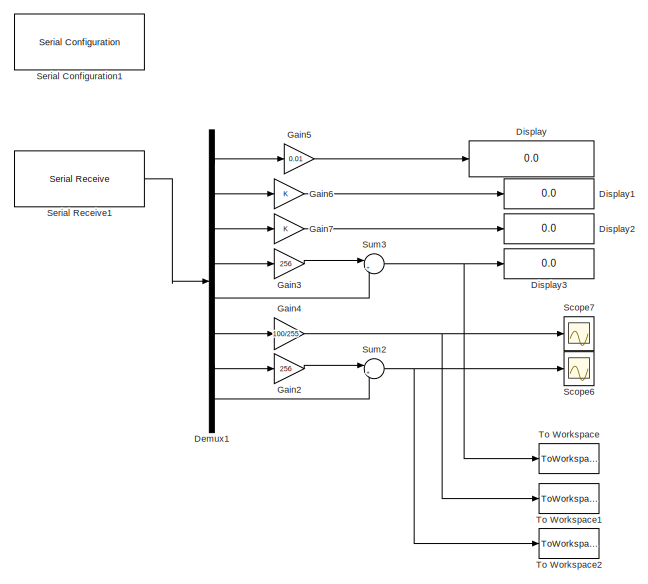
[diagram: root canvas - part 1/2, left side, full height]
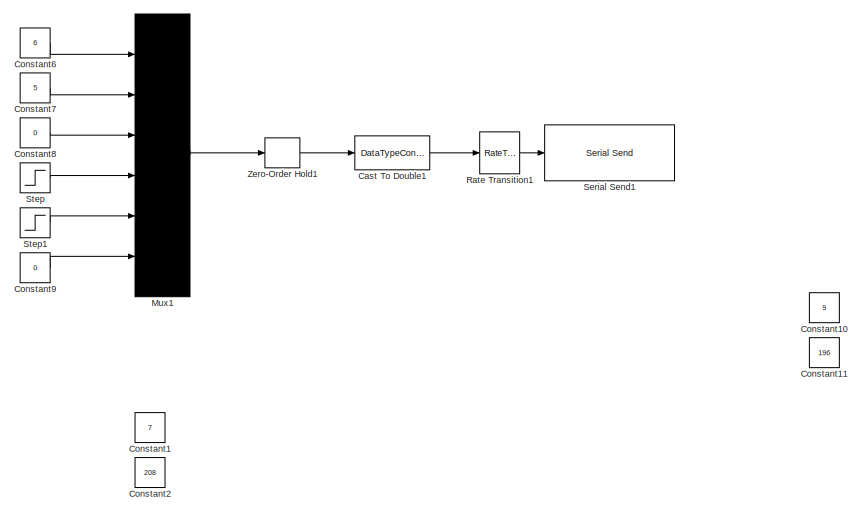
[diagram: root canvas - part 2/2, right side, full height]
MODEL slx_308909fd2b9f
KIND model
CONFIG AbsTol = auto
CONFIG EnableMultiTasking = off
CONFIG FixedStep = auto
CONFIG MaxStep = auto
CONFIG MinStep = auto
CONFIG RelTol = 1e-3
CONFIG SampleTimeConstraint = Unconstrained
CONFIG Solver = VariableStepAuto
CONFIG SolverName = VariableStepAuto
CONFIG StartTime = 0.0
CONFIG StopTime = inf
BLOCK [DataTypeConversion] Cast To Double1
  OutDataTypeStr = uint8
  RndMeth = Floor
  SaturateOnIntegerOverflow = off
BLOCK [Constant] Constant1
  Value = 7
BLOCK [Constant] Constant10
  Value = 9
BLOCK [Constant] Constant11
  Value = 196
BLOCK [Constant] Constant2
  Value = 208
BLOCK [Constant] Constant6
  Value = 6
BLOCK [Constant] Constant7
  Value = 5
BLOCK [Constant] Constant8
  Value = 0
BLOCK [Constant] Constant9
  Value = 0
BLOCK [Demux] Demux1
  DisplayOption = bar
  Outputs = 8
  Ports = [1, 8]
BLOCK [Display] Display
  Decimation = 1
  Ports = [1]
BLOCK [Display] Display1
  Decimation = 1
  Ports = [1]
BLOCK [Display] Display2
  Decimation = 1
  Ports = [1]
BLOCK [Display] Display3
  Decimation = 1
  Ports = [1]
BLOCK [Gain] Gain2
  Gain = 256
  OutDataTypeStr = Inherit: Inherit via internal rule
  ParamDataTypeStr = Inherit: Inherit via internal rule
  SaturateOnIntegerOverflow = off
BLOCK [Gain] Gain3
  Gain = 256
  OutDataTypeStr = Inherit: Inherit via internal rule
  ParamDataTypeStr = Inherit: Inherit via internal rule
  SaturateOnIntegerOverflow = off
BLOCK [Gain] Gain4
  Gain = 100/255
  OutDataTypeStr = Inherit: Inherit via internal rule
  ParamDataTypeStr = Inherit: Inherit via internal rule
  SaturateOnIntegerOverflow = off
BLOCK [Gain] Gain5
  Gain = 0.01
  OutDataTypeStr = Inherit: Inherit via internal rule
  ParamDataTypeStr = Inherit: Inherit via internal rule
  SaturateOnIntegerOverflow = off
BLOCK [Gain] Gain6
  OutDataTypeStr = Inherit: Inherit via internal rule
  ParamDataTypeStr = Inherit: Inherit via internal rule
  SaturateOnIntegerOverflow = off
BLOCK [Gain] Gain7
  OutDataTypeStr = Inherit: Inherit via internal rule
  ParamDataTypeStr = Inherit: Inherit via internal rule
  SaturateOnIntegerOverflow = off
BLOCK [Mux] Mux1
  DisplayOption = signals
  Inputs = 6
  Ports = [6, 1]
BLOCK [RateTransition] Rate Transition1
  OutPortSampleTimeOpt = Multiple of input port sample time
BLOCK [Scope] Scope6
  Floating = off
  NumInputPorts = 1
  Ports = [1]
  ScopeSpecificationString = Simulink.scopes.TimeScopeBlockCfg('CurrentConfiguration', extmgr.ConfigurationSet(extmgr.Configuration('Core','General UI',true),extmgr.Configuration('Core','Source UI',true),extmgr.Configuration('Sources','WiredSimulink',true,'DataLoggingVariableName','ScopeData1'),extmgr.Configuration('Visuals','Time Domain',true,'SerializedDisplays',{struct('MinYLimReal','2343.75','MaxYLimReal','2656.25','YLabe...<+1460ch>
BLOCK [Scope] Scope7
  Floating = off
  NumInputPorts = 1
  Ports = [1]
  ScopeSpecificationString = Simulink.scopes.TimeScopeBlockCfg('CurrentConfiguration', extmgr.ConfigurationSet(extmgr.Configuration('Core','General UI',true),extmgr.Configuration('Core','Source UI',true),extmgr.Configuration('Sources','WiredSimulink',true,'DataLoggingVariableName','ScopeData1'),extmgr.Configuration('Visuals','Time Domain',true,'SerializedDisplays',{struct('MinYLimReal','0.10742','MaxYLimReal','200.10742','YLa...<+1444ch>
BLOCK [Reference] Serial Configuration1  REF=instrumentlib/Serial Configuration
  Ports = []
  Priority = -200000
  SourceBlock = instrumentlib/Serial Configuration
  SourceProductBaseCode = IC
  SourceProductName = Instrument Control Toolbox
  SourceType = Serial Configuration
BLOCK [Reference] Serial Receive1  REF=instrumentlib/Serial Receive
  Ports = [0, 1]
  SourceBlock = instrumentlib/Serial Receive
  SourceProductBaseCode = IC
  SourceProductName = Instrument Control Toolbox
  SourceType = Serial Receive
BLOCK [Reference] Serial Send1  REF=instrumentlib/Serial Send
  Ports = [1]
  SourceBlock = instrumentlib/Serial Send
  SourceProductBaseCode = IC
  SourceProductName = Instrument Control Toolbox
  SourceType = Serial Send
BLOCK [Step] Step
  After = 5
  SampleTime = 0
  Time = 10
BLOCK [Step] Step1
  After = 220
  SampleTime = 0
  Time = 10
BLOCK [Sum] Sum2
  IconShape = round
  InputSameDT = off
  Inputs = |++
  OutDataTypeStr = uint16
  Ports = [2, 1]
  SaturateOnIntegerOverflow = off
BLOCK [Sum] Sum3
  IconShape = round
  InputSameDT = off
  Inputs = |++
  OutDataTypeStr = uint16
  Ports = [2, 1]
  SaturateOnIntegerOverflow = off
BLOCK [ToWorkspace] To Workspace
  MaxDataPoints = inf
  Ports = [1]
  SampleTime = -1
  Save2DSignal = 3-D array (concatenate along third dimension)
  VariableName = Reference
BLOCK [ToWorkspace] To Workspace1
  MaxDataPoints = inf
  Ports = [1]
  SampleTime = -1
  Save2DSignal = 3-D array (concatenate along third dimension)
  VariableName = Control
BLOCK [ToWorkspace] To Workspace2
  MaxDataPoints = inf
  Ports = [1]
  SampleTime = -1
  Save2DSignal = 3-D array (concatenate along third dimension)
  VariableName = Speed
BLOCK [ZeroOrderHold] Zero-Order Hold1
  SampleTime = 0.1
LINE Cast To Double1:1 -> Rate Transition1:1
LINE Constant6:1 -> Mux1:1
LINE Constant7:1 -> Mux1:2
LINE Constant8:1 -> Mux1:3
LINE Constant9:1 -> Mux1:6
LINE Demux1:1 -> Gain5:1
LINE Demux1:2 -> Gain6:1
LINE Demux1:3 -> Gain7:1
LINE Demux1:4 -> Gain3:1
LINE Demux1:5 -> Sum3:2
LINE Demux1:6 -> Gain4:1
LINE Demux1:7 -> Gain2:1
LINE Demux1:8 -> Sum2:2
LINE Gain2:1 -> Sum2:1
LINE Gain3:1 -> Sum3:1
NET Gain4:1 -> Scope7:1, To Workspace1:1
LINE Gain5:1 -> Display:1
LINE Gain6:1 -> Display1:1
LINE Gain7:1 -> Display2:1
LINE Mux1:1 -> Zero-Order Hold1:1
LINE Rate Transition1:1 -> Serial Send1:1
LINE Serial Receive1:1 -> Demux1:1
LINE Step1:1 -> Mux1:5
LINE Step:1 -> Mux1:4
NET Sum2:1 -> Scope6:1, To Workspace2:1
NET Sum3:1 -> Display3:1, To Workspace:1
LINE Zero-Order Hold1:1 -> Cast To Double1:1
note: NET lines group one-source signal fan-out (src -> all destinations, sorted); 1:1 wires keep LINE
